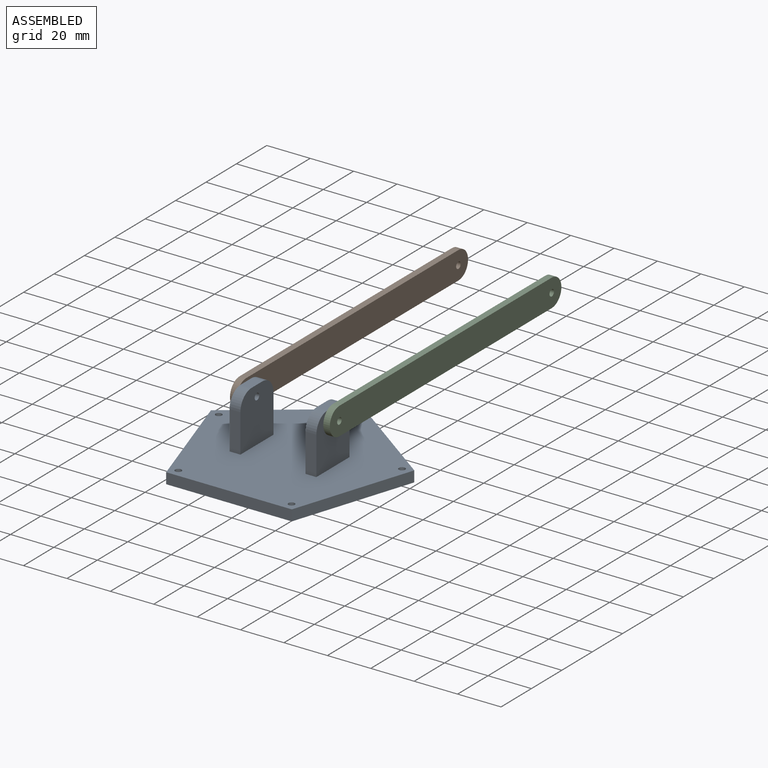
[diagram: assembled view]
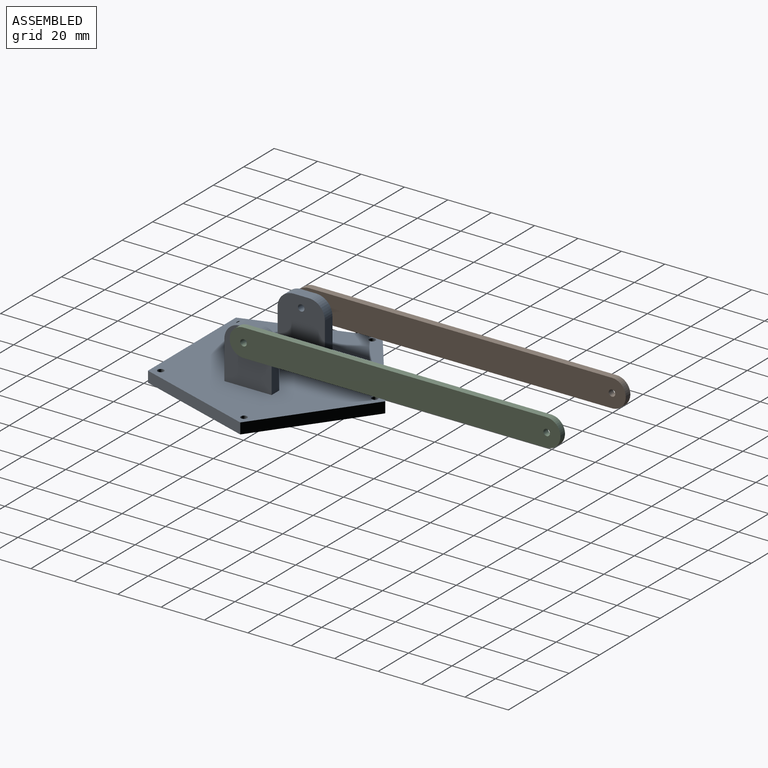
[diagram: assembled view, second angle]
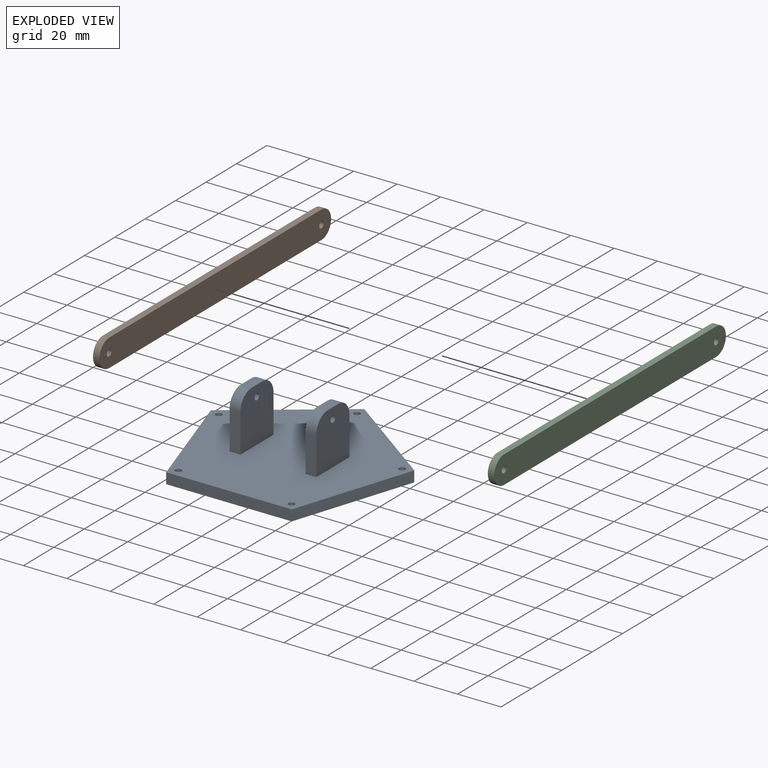
[diagram: exploded view]
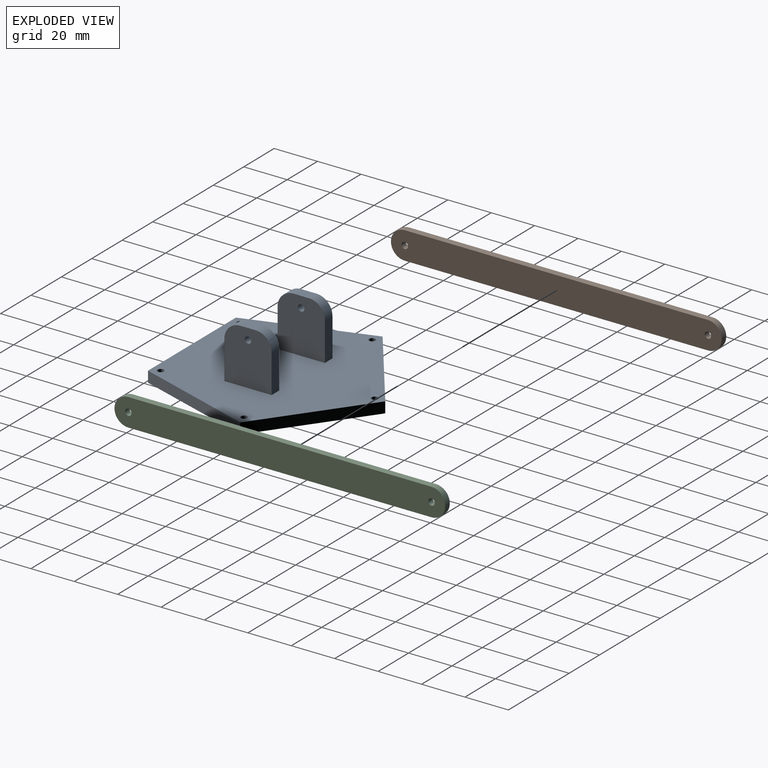
[diagram: exploded view, second angle]
ASSEMBLY  parts=3 mates=3
PART A: 28 faces, bbox 93.7x89.1x30 mm
  f0: plane 46.84x34.03mm, normal (-0.59,0.81,0), area 289.5mm2, adj f1,f4,f10,f11
  f1: plane 55.06x17.89mm, normal (-0.95,-0.31,0), area 289.5mm2, adj f0,f2,f10,f11
  f2: plane 57.89x5mm, normal (0,-1,0), area 289.5mm2, adj f1,f3,f10,f11
  f3: plane 55.06x17.89mm, normal (0.95,-0.31,0), area 289.5mm2, adj f2,f4,f10,f11
  f4: plane 46.84x34.03mm, normal (0.59,0.81,0), area 289.5mm2, adj f0,f3,f10,f11
  f5: cylinder r=1.45mm len=5mm, axis (0,0,-1), area 45.6mm2, adj f10,f11
  f6: cylinder r=1.45mm len=5mm, axis (0,0,-1), area 45.6mm2, adj f10,f11
  f7: cylinder r=1.45mm len=5mm, axis (0,0,-1), area 45.6mm2, adj f10,f11
  f8: cylinder r=1.45mm len=5mm, axis (0,0,-1), area 45.6mm2, adj f10,f11
  f9: cylinder r=1.45mm len=5mm, axis (0,0,-1), area 45.6mm2, adj f10,f11
  f10: plane 93.67x89.09mm, normal (0,0,1), area 5515.3mm2, adj f0,f1,f2,f3,f4,f5,f6,f7
  f11: plane 93.67x89.09mm, normal (0,0,-1), area 5733.2mm2, adj f0,f1,f2,f3,f4,f5,f6,f7
  f12: plane 7.07x5mm, normal (0,0,1), area 35.3mm2, adj f13,f15,f24,f25
  f13: plane 25x21.79mm, normal (-1,0,0), area 514.3mm2, adj f10,f12,f14,f16,f24,f25,f27
  f14: plane 17.64x5mm, normal (0,-1,0), area 88.2mm2, adj f10,f13,f15,f25
  f15: plane 25x21.79mm, normal (1,0,0), area 514.3mm2, adj f10,f12,f14,f16,f24,f25,f27
  f16: plane 17.64x5mm, normal (0,1,0), area 88.2mm2, adj f10,f13,f15,f24
  f17: plane 7.07x5mm, normal (0,0,1), area 35.3mm2, adj f19,f21,f22,f23
  f18: plane 17.64x5mm, normal (0,-1,0), area 88.2mm2, adj f10,f19,f21,f22
  f19: plane 25x21.79mm, normal (1,0,0), area 514.3mm2, adj f10,f17,f18,f20,f22,f23,f26
  f20: plane 17.64x5mm, normal (0,1,0), area 88.2mm2, adj f10,f19,f21,f23
  f21: plane 25x21.79mm, normal (-1,0,0), area 514.3mm2, adj f10,f17,f18,f20,f22,f23,f26
  f22: cylinder r=7.36mm len=7.36mm, axis (-1,0,0), area 57.8mm2, adj f17,f18,f19,f21
  f23: cylinder r=7.36mm len=7.36mm, axis (1,0,0), area 57.8mm2, adj f17,f19,f20,f21
  f24: cylinder r=7.36mm len=7.36mm, axis (1,0,0), area 57.8mm2, adj f12,f13,f15,f16
  f25: cylinder r=7.36mm len=7.36mm, axis (-1,0,0), area 57.8mm2, adj f12,f13,f14,f15
  f26: cylinder r=1.5mm len=5mm, axis (-1,0,0), area 47.1mm2, adj f19,f21
  f27: cylinder r=1.5mm len=5mm, axis (1,0,0), area 47.1mm2, adj f13,f15
PART B: 8 faces, bbox 152.4x3x12.7 mm
  f0: cylinder r=6.35mm len=12.7mm, axis (0,1,0), area 59.8mm2, adj f1,f5,f6,f7
  f1: plane 139.7x3mm, normal (0,0,-1), area 419.1mm2, adj f0,f2,f6,f7
  f2: cylinder r=6.35mm len=12.7mm, axis (0,1,0), area 59.8mm2, adj f1,f5,f6,f7
  f3: cylinder r=1.5mm len=3mm, axis (0,1,0), area 28.3mm2, adj f6,f7
  f4: cylinder r=1.5mm len=3mm, axis (0,1,0), area 28.3mm2, adj f6,f7
  f5: plane 139.7x3mm, normal (0,0,1), area 419.1mm2, adj f0,f2,f6,f7
  f6: plane 152.4x12.7mm, normal (0,-1,0), area 1886.7mm2, adj f0,f1,f2,f3,f4,f5
  f7: plane 152.4x12.7mm, normal (0,1,0), area 1886.7mm2, adj f0,f1,f2,f3,f4,f5
PART C: same geometry as B
PLACE A t=(-4.75,-15.3,10.13)mm
PLACE B rot(axis=(0,0,1),90deg) t=(-27.75,54.55,35.13)mm
PLACE C rot(axis=(0,0,-1),90deg) t=(18.25,54.55,35.13)mm
MATE revolute B.f0 <-> A.f26  axis (1,0,0) through (-24.75,-15.3,35.13)mm
MATE revolute C.f2 <-> A.f26  axis (-1,0,0) through (15.25,-15.3,35.13)mm
MATE cylindrical B.f0 <-> A.f26  axis (1,0,0) through (-24.75,-15.3,35.13)mm
